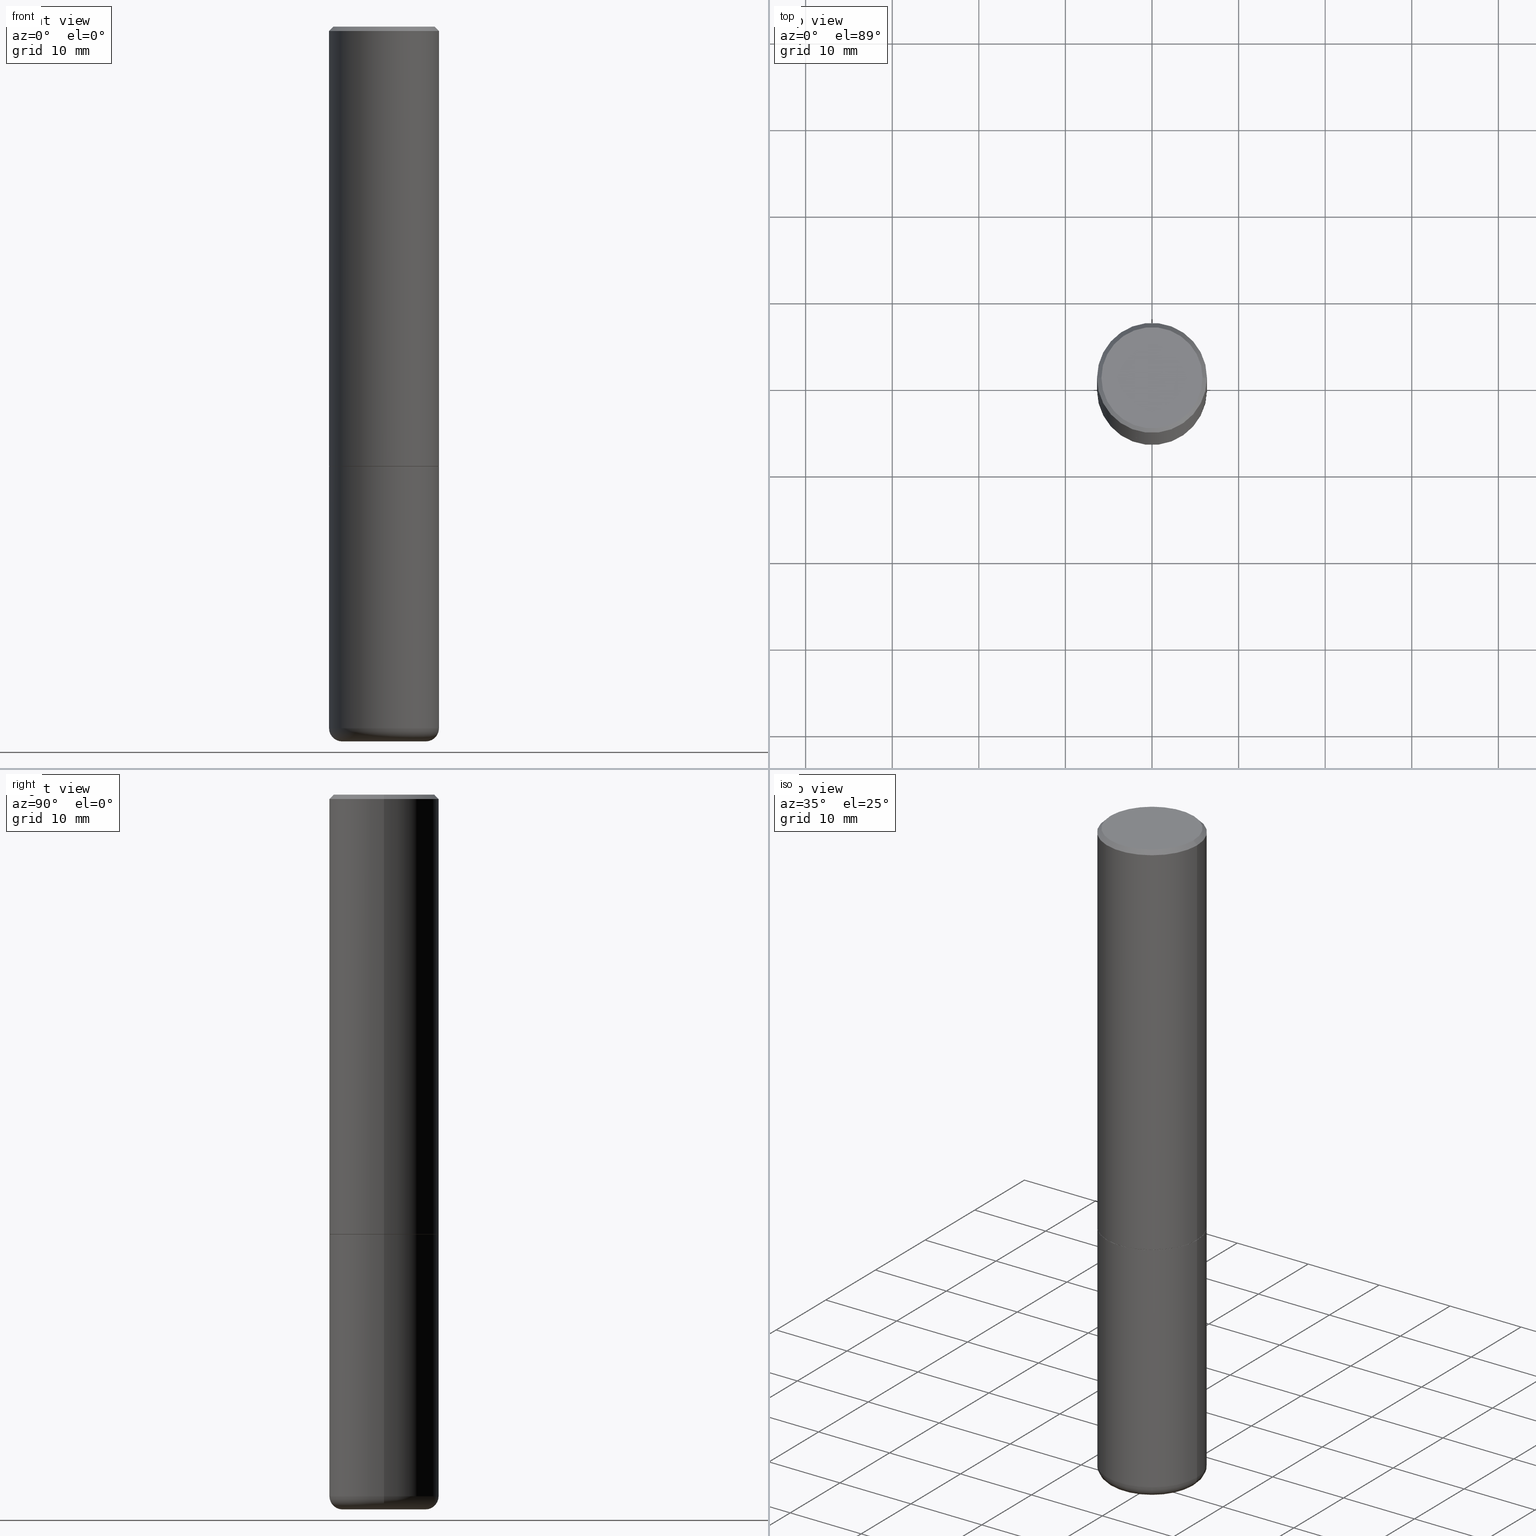
[diagram: canonical four-view strip — front | top / right | iso, engineering-drawing reading convention]
A machine part, canonical four-view strip (front | top / right | iso — engineering-drawing reading convention). The complete STEP part file that produces these views, byte-faithful:
ISO-10303-21;
HEADER;
FILE_DESCRIPTION (( 'STEP AP203' ),
    '1' );
FILE_NAME ('77180.STEP',
    '2024-03-06T16:18:30',
    ( '' ),
    ( '' ),
    'SwSTEP 2.0',
    'SolidWorks 2023',
    '' );
FILE_SCHEMA (( 'CONFIG_CONTROL_DESIGN' ));
ENDSEC;

DATA;
#1 = EDGE_CURVE ( 'NONE', #260, #391, #147, .T. ) ;
#2 = PERSON_AND_ORGANIZATION ( #313, #359 ) ;
#3 = ORIENTED_EDGE ( 'NONE', *, *, #79, .T. ) ;
#4 =( GEOMETRIC_REPRESENTATION_CONTEXT ( 3 ) GLOBAL_UNCERTAINTY_ASSIGNED_CONTEXT ( ( #137 ) ) GLOBAL_UNIT_ASSIGNED_CONTEXT ( ( #145, #129, #26 ) ) REPRESENTATION_CONTEXT ( 'NONE', 'WORKASPACE' ) );
#5 = APPROVAL_ROLE ( '' ) ;
#6 = ORIENTED_EDGE ( 'NONE', *, *, #96, .T. ) ;
#7 = PERSON_AND_ORGANIZATION_ROLE ( 'design_owner' ) ;
#8 = ORIENTED_EDGE ( 'NONE', *, *, #20, .T. ) ;
#9 = CARTESIAN_POINT ( 'NONE',  ( 0.2489999999999999991, -8.721720384430171040E-15, -2.000000000000000000 ) ) ;
#10 = EDGE_CURVE ( 'NONE', #52, #260, #418, .T. ) ;
#11 = CIRCLE ( 'NONE', #190, 0.2499999999999999167 ) ;
#12 = CARTESIAN_POINT ( 'NONE',  ( -0.2499999999999999722, -9.361468631509382488E-15, -3.189999999999999947 ) ) ;
#13 = DIRECTION ( 'NONE',  ( 1.000000000000000000, -6.982962677686266711E-15, 0.000000000000000000 ) ) ;
#14 = PRODUCT_DEFINITION ( 'UNKNOWN', '', #401, #368 ) ;
#15 = CARTESIAN_POINT ( 'NONE',  ( 0.000000000000000000, 0.000000000000000000, 0.000000000000000000 ) ) ;
#16 = AXIS2_PLACEMENT_3D ( 'NONE', #39, #168, #291 ) ;
#17 = CIRCLE ( 'NONE', #345, 0.2500000000000000000 ) ;
#18 = EDGE_CURVE ( 'NONE', #220, #314, #93, .T. ) ;
#19 = PLANE ( 'NONE',  #198 ) ;
#20 = EDGE_CURVE ( 'NONE', #377, #247, #385, .T. ) ;
#21 = CARTESIAN_POINT ( 'NONE',  ( -0.1899999999999999745, -9.679375892402709259E-15, -3.250000000000000000 ) ) ;
#22 = ORIENTED_EDGE ( 'NONE', *, *, #288, .T. ) ;
#23 = CARTESIAN_POINT ( 'NONE',  ( 4.888492143564087591E-29, -6.979471196347447369E-15, -1.998999999999999888 ) ) ;
#24 = ORIENTED_EDGE ( 'NONE', *, *, #1, .T. ) ;
#25 = LINE ( 'NONE', #303, #118 ) ;
#26 =( NAMED_UNIT ( * ) SI_UNIT ( $, .STERADIAN. ) SOLID_ANGLE_UNIT ( ) );
#27 = CONICAL_SURFACE ( 'NONE', #323, 0.2489999999999999991, 0.7853981633975507526 ) ;
#28 = ADVANCED_FACE ( 'NONE', ( #31 ), #326, .T. ) ;
#29 = ORIENTED_EDGE ( 'NONE', *, *, #334, .T. ) ;
#30 = AXIS2_PLACEMENT_3D ( 'NONE', #150, #152, #410 ) ;
#31 = FACE_OUTER_BOUND ( 'NONE', #390, .T. ) ;
#32 = CARTESIAN_POINT ( 'NONE',  ( 4.890937612370273194E-29, -6.982962677686291165E-15, -2.000000000000000000 ) ) ;
#33 = SHAPE_DEFINITION_REPRESENTATION ( #381, #366 ) ;
#34 = ORIENTED_EDGE ( 'NONE', *, *, #370, .F. ) ;
#35 = AXIS2_PLACEMENT_3D ( 'NONE', #68, #317, #358 ) ;
#36 = CIRCLE ( 'NONE', #30, 0.05999999999999994227 ) ;
#37 = AXIS2_PLACEMENT_3D ( 'NONE', #375, #216, #181 ) ;
#38 = ADVANCED_FACE ( 'NONE', ( #101 ), #27, .T. ) ;
#39 = CARTESIAN_POINT ( 'NONE',  ( 0.000000000000000000, 0.000000000000000000, 0.000000000000000000 ) ) ;
#40 = DIRECTION ( 'NONE',  ( -1.000000000000000000, 6.982962677686265922E-15, -4.876176775795935793E-29 ) ) ;
#41 = DIRECTION ( 'NONE',  ( -1.000000000000000000, 7.105427357600997914E-15, 0.000000000000000000 ) ) ;
#42 = AXIS2_PLACEMENT_3D ( 'NONE', #83, #87, #113 ) ;
#43 = LINE ( 'NONE', #106, #69 ) ;
#44 = CC_DESIGN_PERSON_AND_ORGANIZATION_ASSIGNMENT ( #257, #316, ( #401 ) ) ;
#45 = DIRECTION ( 'NONE',  ( 2.438088387897960049E-29, -3.491481338843145188E-15, -1.000000000000000000 ) ) ;
#46 = DIRECTION ( 'NONE',  ( 1.000000000000000000, -6.982962677686265133E-15, 4.883557194083112340E-29 ) ) ;
#47 = CIRCLE ( 'NONE', #156, 0.2299999999999999267 ) ;
#48 = ADVANCED_FACE ( 'NONE', ( #225 ), #126, .T. ) ;
#49 = DIRECTION ( 'NONE',  ( -2.445468806185136877E-29, 3.491481338843145188E-15, 1.000000000000000000 ) ) ;
#50 = LENGTH_MEASURE_WITH_UNIT ( LENGTH_MEASURE( 0.02539999999999999897 ), #144 );
#51 = DIRECTION ( 'NONE',  ( -2.445468806185136597E-29, 3.491481338843145583E-15, 1.000000000000000000 ) ) ;
#52 = VERTEX_POINT ( 'NONE', #162 ) ;
#53 = DIRECTION ( 'NONE',  ( -2.445468806185136877E-29, 3.491481338843145188E-15, 1.000000000000000000 ) ) ;
#54 = AXIS2_PLACEMENT_3D ( 'NONE', #15, #109, #362 ) ;
#55 = ORIENTED_EDGE ( 'NONE', *, *, #18, .T. ) ;
#56 = DIRECTION ( 'NONE',  ( -2.445468806185136597E-29, 3.491481338843145583E-15, 1.000000000000000000 ) ) ;
#57 = ORIENTED_EDGE ( 'NONE', *, *, #84, .F. ) ;
#58 = FACE_OUTER_BOUND ( 'NONE', #310, .T. ) ;
#59 = ORIENTED_EDGE ( 'NONE', *, *, #114, .T. ) ;
#60 = APPROVAL ( #120, 'UNSPECIFIED' ) ;
#61 = COORDINATED_UNIVERSAL_TIME_OFFSET ( 5, 0, .BEHIND. ) ;
#62 = DIRECTION ( 'NONE',  ( -2.445468806185136597E-29, 3.491481338843145583E-15, 1.000000000000000000 ) ) ;
#63 = AXIS2_PLACEMENT_3D ( 'NONE', #173, #275, #402 ) ;
#64 = APPROVAL_ROLE ( '' ) ;
#65 = ORIENTED_EDGE ( 'NONE', *, *, #370, .T. ) ;
#66 = ORIENTED_EDGE ( 'NONE', *, *, #136, .F. ) ;
#67 = APPROVAL_ROLE ( '' ) ;
#68 = CARTESIAN_POINT ( 'NONE',  ( 7.947773620101693940E-29, -1.134731435124022443E-14, -3.250000000000000000 ) ) ;
#69 = VECTOR ( 'NONE', #49, 39.37007874015748143 ) ;
#70 = APPROVAL_STATUS ( 'not_yet_approved' ) ;
#71 = ORIENTED_EDGE ( 'NONE', *, *, #114, .F. ) ;
#72 = CARTESIAN_POINT ( 'NONE',  ( -0.2500000000000002776, -1.748293572161900530E-15, -1.998999999999999888 ) ) ;
#73 = CARTESIAN_POINT ( 'NONE',  ( 0.2499999999999999722, -1.288356614033120121E-14, -3.189999999999999947 ) ) ;
#74 = AXIS2_PLACEMENT_3D ( 'NONE', #248, #51, #376 ) ;
#75 = DIRECTION ( 'NONE',  ( -2.438088387897960049E-29, 3.491481338843145188E-15, 1.000000000000000000 ) ) ;
#76 = CARTESIAN_POINT ( 'NONE',  ( 4.890937612370273194E-29, -6.982962677686291165E-15, -2.000000000000000000 ) ) ;
#77 = EDGE_CURVE ( 'NONE', #287, #88, #135, .T. ) ;
#78 = FACE_OUTER_BOUND ( 'NONE', #222, .T. ) ;
#79 = EDGE_CURVE ( 'NONE', #287, #52, #292, .T. ) ;
#80 = VECTOR ( 'NONE', #53, 39.37007874015748143 ) ;
#81 = FACE_OUTER_BOUND ( 'NONE', #411, .T. ) ;
#82 = ORIENTED_EDGE ( 'NONE', *, *, #361, .T. ) ;
#83 = CARTESIAN_POINT ( 'NONE',  ( 0.000000000000000000, 0.000000000000000000, 0.000000000000000000 ) ) ;
#84 = EDGE_CURVE ( 'NONE', #220, #194, #86, .T. ) ;
#85 = ORIENTED_EDGE ( 'NONE', *, *, #77, .T. ) ;
#86 = CIRCLE ( 'NONE', #148, 0.2500000000000000000 ) ;
#87 = DIRECTION ( 'NONE',  ( -2.445468806185136597E-29, 3.491481338843145583E-15, 1.000000000000000000 ) ) ;
#88 = VERTEX_POINT ( 'NONE', #335 ) ;
#89 = DIRECTION ( 'NONE',  ( 1.000000000000000000, -6.982962677686261977E-15, 0.000000000000000000 ) ) ;
#90 = CALENDAR_DATE ( 2024, 6, 3 ) ;
#91 = EDGE_LOOP ( 'NONE', ( #59, #154, #166, #372 ) ) ;
#92 = APPROVAL_DATE_TIME ( #197, #163 ) ;
#93 = LINE ( 'NONE', #229, #293 ) ;
#94 = CIRCLE ( 'NONE', #330, 0.1899999999999999745 ) ;
#95 = APPLICATION_PROTOCOL_DEFINITION ( 'international standard', 'config_control_design', 1994, #242 ) ;
#96 = EDGE_CURVE ( 'NONE', #88, #287, #172, .T. ) ;
#97 = ORIENTED_EDGE ( 'NONE', *, *, #169, .T. ) ;
#98 = COORDINATED_UNIVERSAL_TIME_OFFSET ( 5, 0, .BEHIND. ) ;
#99 = DIRECTION ( 'NONE',  ( -2.445468806185136877E-29, 3.491481338843145188E-15, 1.000000000000000000 ) ) ;
#100 = APPROVAL_DATE_TIME ( #387, #60 ) ;
#101 = FACE_OUTER_BOUND ( 'NONE', #201, .T. ) ;
#102 = CIRCLE ( 'NONE', #37, 0.2500000000000000000 ) ;
#103 = DIRECTION ( 'NONE',  ( 2.445468806185136597E-29, -3.491481338843145583E-15, -1.000000000000000000 ) ) ;
#104 = EDGE_CURVE ( 'NONE', #391, #260, #11, .T. ) ;
#105 = PLANE ( 'NONE',  #127 ) ;
#106 = CARTESIAN_POINT ( 'NONE',  ( 0.2500000000000000000, -1.745740669421566678E-15, 1.219044193948983948E-29 ) ) ;
#107 = AXIS2_PLACEMENT_3D ( 'NONE', #265, #228, #382 ) ;
#108 = FACE_OUTER_BOUND ( 'NONE', #91, .T. ) ;
#109 = DIRECTION ( 'NONE',  ( -2.445468806185136597E-29, 3.491481338843145583E-15, 1.000000000000000000 ) ) ;
#110 = PRODUCT_RELATED_PRODUCT_CATEGORY ( 'detail', '', ( #133 ) ) ;
#111 = LINE ( 'NONE', #343, #80 ) ;
#112 = LOCAL_TIME ( 11, 18, 30.00000000000000000, #357 ) ;
#113 = DIRECTION ( 'NONE',  ( 1.000000000000000000, -6.982962677686266711E-15, 4.876176775795935793E-29 ) ) ;
#114 = EDGE_CURVE ( 'NONE', #52, #182, #209, .T. ) ;
#115 = DIRECTION ( 'NONE',  ( -2.445468806185136597E-29, 3.491481338843145583E-15, 1.000000000000000000 ) ) ;
#116 = ORIENTED_EDGE ( 'NONE', *, *, #276, .F. ) ;
#117 = DIRECTION ( 'NONE',  ( 0.7071067811865465735, -7.319954787623252890E-15, -0.7071067811865484609 ) ) ;
#118 = VECTOR ( 'NONE', #379, 39.37007874015748143 ) ;
#119 = DIRECTION ( 'NONE',  ( 1.000000000000000000, -6.982962677686270655E-15, 0.000000000000000000 ) ) ;
#120 = APPROVAL_STATUS ( 'not_yet_approved' ) ;
#121 = ORIENTED_EDGE ( 'NONE', *, *, #104, .T. ) ;
#122 = ADVANCED_FACE ( 'NONE', ( #394 ), #253, .T. ) ;
#123 = PERSON_AND_ORGANIZATION ( #313, #359 ) ;
#124 = CARTESIAN_POINT ( 'NONE',  ( 0.2500000000000001110, -1.745740669421567467E-15, 1.219044193948984509E-29 ) ) ;
#125 = DATE_TIME_ROLE ( 'classification_date' ) ;
#126 = PLANE ( 'NONE',  #155 ) ;
#127 = AXIS2_PLACEMENT_3D ( 'NONE', #134, #236, #204 ) ;
#128 = CC_DESIGN_SECURITY_CLASSIFICATION ( #149, ( #401 ) ) ;
#129 =( NAMED_UNIT ( * ) PLANE_ANGLE_UNIT ( ) SI_UNIT ( $, .RADIAN. ) );
#130 = EDGE_LOOP ( 'NONE', ( #132, #278, #24, #116 ) ) ;
#131 = CALENDAR_DATE ( 2024, 6, 3 ) ;
#132 = ORIENTED_EDGE ( 'NONE', *, *, #334, .F. ) ;
#133 = PRODUCT ( '77180', '77180', '', ( #284 ) ) ;
#134 = CARTESIAN_POINT ( 'NONE',  ( 1.606081415867840870E-15, 0.2299999999999999267, -8.073092204240237214E-16 ) ) ;
#135 = CIRCLE ( 'NONE', #141, 0.2489999999999999991 ) ;
#136 = EDGE_CURVE ( 'NONE', #314, #199, #17, .T. ) ;
#137 = UNCERTAINTY_MEASURE_WITH_UNIT (LENGTH_MEASURE( 1.000000000000000082E-05 ), #145, 'distance_accuracy_value', 'NONE');
#138 = FACE_OUTER_BOUND ( 'NONE', #339, .T. ) ;
#139 = CARTESIAN_POINT ( 'NONE',  ( 0.2500000000000000000, -8.728703347107857054E-15, -2.000000000000000000 ) ) ;
#140 = DIRECTION ( 'NONE',  ( -2.445468806185136597E-29, 3.491481338843145583E-15, 1.000000000000000000 ) ) ;
#141 = AXIS2_PLACEMENT_3D ( 'NONE', #32, #264, #170 ) ;
#142 = ADVANCED_FACE ( 'NONE', ( #108 ), #333, .T. ) ;
#143 = CARTESIAN_POINT ( 'NONE',  ( 4.888492143564087591E-29, -6.979471196347447369E-15, -1.998999999999999888 ) ) ;
#144 =( LENGTH_UNIT ( ) NAMED_UNIT ( * ) SI_UNIT ( $, .METRE. ) );
#145 =( CONVERSION_BASED_UNIT ( 'INCH', #50 ) LENGTH_UNIT ( ) NAMED_UNIT ( #200 ) );
#146 = ORIENTED_EDGE ( 'NONE', *, *, #320, .T. ) ;
#147 = CIRCLE ( 'NONE', #397, 0.2499999999999999167 ) ;
#148 = AXIS2_PLACEMENT_3D ( 'NONE', #295, #207, #175 ) ;
#149 = SECURITY_CLASSIFICATION ( '', '', #417 ) ;
#150 = CARTESIAN_POINT ( 'NONE',  ( 0.1899999999999999745, -1.246458837967002615E-14, -3.189999999999999947 ) ) ;
#151 = EDGE_LOOP ( 'NONE', ( #256, #6, #3, #34 ) ) ;
#152 = DIRECTION ( 'NONE',  ( -6.982962677686266711E-15, -1.000000000000000000, 3.491481338843145583E-15 ) ) ;
#153 = FACE_OUTER_BOUND ( 'NONE', #233, .T. ) ;
#154 = ORIENTED_EDGE ( 'NONE', *, *, #341, .T. ) ;
#155 = AXIS2_PLACEMENT_3D ( 'NONE', #327, #319, #40 ) ;
#156 = AXIS2_PLACEMENT_3D ( 'NONE', #280, #246, #403 ) ;
#157 = APPLICATION_PROTOCOL_DEFINITION ( 'international standard', 'config_control_design', 1994, #215 ) ;
#158 = ORIENTED_EDGE ( 'NONE', *, *, #218, .F. ) ;
#159 = PERSON_AND_ORGANIZATION ( #313, #359 ) ;
#160 = DIRECTION ( 'NONE',  ( -2.445468806185136597E-29, 3.491481338843145583E-15, 1.000000000000000000 ) ) ;
#161 = DATE_AND_TIME ( #90, #269 ) ;
#162 = CARTESIAN_POINT ( 'NONE',  ( 0.2500000000000002776, -8.725211865769015625E-15, -1.998999999999999888 ) ) ;
#163 = APPROVAL ( #259, 'UNSPECIFIED' ) ;
#164 = CALENDAR_DATE ( 2024, 6, 3 ) ;
#165 = CLOSED_SHELL ( 'NONE', ( #28, #174, #234, #298, #271, #48 ) ) ;
#166 = ORIENTED_EDGE ( 'NONE', *, *, #1, .F. ) ;
#167 = VECTOR ( 'NONE', #383, 39.37007874015748143 ) ;
#168 = DIRECTION ( 'NONE',  ( -2.445468806185136597E-29, 3.491481338843145583E-15, 1.000000000000000000 ) ) ;
#169 = EDGE_CURVE ( 'NONE', #88, #182, #363, .T. ) ;
#170 = DIRECTION ( 'NONE',  ( 1.000000000000000000, -6.982962677686266711E-15, 0.000000000000000000 ) ) ;
#171 = DIRECTION ( 'NONE',  ( 1.000000000000000000, -6.982962677686266711E-15, 0.000000000000000000 ) ) ;
#172 = CIRCLE ( 'NONE', #405, 0.2489999999999999991 ) ;
#173 = CARTESIAN_POINT ( 'NONE',  ( 4.890937612370287172E-31, -6.982962677686310098E-17, -0.02000000000000005593 ) ) ;
#174 = ADVANCED_FACE ( 'NONE', ( #138 ), #245, .T. ) ;
#175 = DIRECTION ( 'NONE',  ( 1.000000000000000000, -6.982962677686270655E-15, 0.000000000000000000 ) ) ;
#176 = FACE_OUTER_BOUND ( 'NONE', #130, .T. ) ;
#177 = AXIS2_PLACEMENT_3D ( 'NONE', #329, #299, #41 ) ;
#178 = ADVANCED_FACE ( 'NONE', ( #176 ), #364, .T. ) ;
#179 = CARTESIAN_POINT ( 'NONE',  ( 4.890937612370273194E-29, -6.982962677686291165E-15, -2.000000000000000000 ) ) ;
#180 = DIRECTION ( 'NONE',  ( 1.000000000000000000, -6.982962677686266711E-15, 4.876176775795935793E-29 ) ) ;
#181 = DIRECTION ( 'NONE',  ( 1.000000000000000000, -6.982962677686266711E-15, 0.000000000000000000 ) ) ;
#182 = VERTEX_POINT ( 'NONE', #72 ) ;
#183 = CIRCLE ( 'NONE', #315, 0.2500000000000002776 ) ;
#184 = DIRECTION ( 'NONE',  ( 1.000000000000000000, -6.982962677686266711E-15, 0.000000000000000000 ) ) ;
#185 = ORIENTED_EDGE ( 'NONE', *, *, #361, .F. ) ;
#186 = DIRECTION ( 'NONE',  ( 1.000000000000000000, -6.982962677686266711E-15, 0.000000000000000000 ) ) ;
#187 = EDGE_LOOP ( 'NONE', ( #22, #304 ) ) ;
#188 = CARTESIAN_POINT ( 'NONE',  ( -0.2299999999999999267, 1.640996229256272125E-15, -8.537024980212177841E-18 ) ) ;
#189 = EDGE_LOOP ( 'NONE', ( #82, #29 ) ) ;
#190 = AXIS2_PLACEMENT_3D ( 'NONE', #272, #297, #367 ) ;
#191 = PERSON_AND_ORGANIZATION_ROLE ( 'creator' ) ;
#192 = CARTESIAN_POINT ( 'NONE',  ( 4.890937612370287172E-31, -6.982962677686310098E-17, -0.02000000000000005593 ) ) ;
#193 = COORDINATED_UNIVERSAL_TIME_OFFSET ( 5, 0, .BEHIND. ) ;
#194 = VERTEX_POINT ( 'NONE', #73 ) ;
#195 = DATE_AND_TIME ( #221, #112 ) ;
#196 = ORIENTED_EDGE ( 'NONE', *, *, #96, .F. ) ;
#197 = DATE_AND_TIME ( #131, #254 ) ;
#198 = AXIS2_PLACEMENT_3D ( 'NONE', #270, #45, #395 ) ;
#199 = VERTEX_POINT ( 'NONE', #139 ) ;
#200 = DIMENSIONAL_EXPONENTS ( 1.000000000000000000, 0.000000000000000000, 0.000000000000000000, 0.000000000000000000, 0.000000000000000000, 0.000000000000000000, 0.000000000000000000 ) ;
#201 = EDGE_LOOP ( 'NONE', ( #85, #97, #71, #352 ) ) ;
#202 = EDGE_CURVE ( 'NONE', #247, #220, #336, .T. ) ;
#203 = DIRECTION ( 'NONE',  ( -1.000000000000000000, 6.982962677686267499E-15, 0.000000000000000000 ) ) ;
#204 = DIRECTION ( 'NONE',  ( -1.000000000000000000, 6.982962677686265922E-15, -4.876176775795935793E-29 ) ) ;
#205 = DIRECTION ( 'NONE',  ( 1.000000000000000000, -6.982962677686265922E-15, 4.876176775795935793E-29 ) ) ;
#206 = CARTESIAN_POINT ( 'NONE',  ( 4.890937612370273194E-29, -6.982962677686291165E-15, -2.000000000000000000 ) ) ;
#207 = DIRECTION ( 'NONE',  ( -2.445468806185136597E-29, 3.491481338843145583E-15, 1.000000000000000000 ) ) ;
#208 = CLOSED_SHELL ( 'NONE', ( #38, #142, #178, #122, #347, #350, #230, #237 ) ) ;
#209 = CIRCLE ( 'NONE', #274, 0.2500000000000002776 ) ;
#210 = LOCAL_TIME ( 11, 18, 30.00000000000000000, #98 ) ;
#211 = CC_DESIGN_DATE_AND_TIME_ASSIGNMENT ( #262, #351, ( #14 ) ) ;
#212 = CARTESIAN_POINT ( 'NONE',  ( 7.947773620101693940E-29, -1.134731435124022443E-14, -3.250000000000000000 ) ) ;
#213 = FACE_OUTER_BOUND ( 'NONE', #151, .T. ) ;
#214 = EDGE_LOOP ( 'NONE', ( #312, #258 ) ) ;
#215 = APPLICATION_CONTEXT ( 'configuration controlled 3d designs of mechanical parts and assemblies' ) ;
#216 = DIRECTION ( 'NONE',  ( -2.445468806185136597E-29, 3.491481338843145583E-15, 1.000000000000000000 ) ) ;
#217 = ORIENTED_EDGE ( 'NONE', *, *, #243, .F. ) ;
#218 = EDGE_CURVE ( 'NONE', #194, #199, #43, .T. ) ;
#219 = DIRECTION ( 'NONE',  ( -2.445468806185136597E-29, 3.491481338843145583E-15, 1.000000000000000000 ) ) ;
#220 = VERTEX_POINT ( 'NONE', #12 ) ;
#221 = CALENDAR_DATE ( 2024, 6, 3 ) ;
#222 = EDGE_LOOP ( 'NONE', ( #321, #196 ) ) ;
#223 = VECTOR ( 'NONE', #117, 39.37007874015748143 ) ;
#224 = PERSON_AND_ORGANIZATION_ROLE ( 'creator' ) ;
#225 = FACE_OUTER_BOUND ( 'NONE', #214, .T. ) ;
#226 = COORDINATED_UNIVERSAL_TIME_OFFSET ( 5, 0, .BEHIND. ) ;
#227 = ORIENTED_EDGE ( 'NONE', *, *, #18, .F. ) ;
#228 = DIRECTION ( 'NONE',  ( 0.000000000000000000, 0.000000000000000000, 1.000000000000000000 ) ) ;
#229 = CARTESIAN_POINT ( 'NONE',  ( -0.2500000000000000000, 1.776356839400250465E-15, -1.229733772563726445E-29 ) ) ;
#230 = ADVANCED_FACE ( 'NONE', ( #78 ), #365, .F. ) ;
#231 = PERSON_AND_ORGANIZATION ( #313, #359 ) ;
#232 = TOROIDAL_SURFACE ( 'NONE', #74, 0.1899999999999999745, 0.05999999999999995615 ) ;
#233 = EDGE_LOOP ( 'NONE', ( #380, #65, #344, #409 ) ) ;
#234 = ADVANCED_FACE ( 'NONE', ( #332 ), #19, .F. ) ;
#235 = DIRECTION ( 'NONE',  ( -2.445468806185136597E-29, 3.491481338843145583E-15, 1.000000000000000000 ) ) ;
#236 = DIRECTION ( 'NONE',  ( 2.438088387897960049E-29, -3.491481338843145188E-15, -1.000000000000000000 ) ) ;
#237 = ADVANCED_FACE ( 'NONE', ( #301 ), #105, .F. ) ;
#238 = DIRECTION ( 'NONE',  ( 1.000000000000000000, -6.982962677686266711E-15, 0.000000000000000000 ) ) ;
#239 = AXIS2_PLACEMENT_3D ( 'NONE', #338, #219, #184 ) ;
#240 = DIRECTION ( 'NONE',  ( -0.7071067811866199593, 7.493145998870616062E-15, 0.7071067811864750752 ) ) ;
#241 = CARTESIAN_POINT ( 'NONE',  ( -0.2489999999999999991, -5.213711265643641709E-15, -2.000000000000000000 ) ) ;
#242 = APPLICATION_CONTEXT ( 'configuration controlled 3d designs of mechanical parts and assemblies' ) ;
#243 = EDGE_CURVE ( 'NONE', #374, #260, #331, .T. ) ;
#244 = DIRECTION ( 'NONE',  ( -2.445468806185136597E-29, 3.491481338843145583E-15, 1.000000000000000000 ) ) ;
#245 = TOROIDAL_SURFACE ( 'NONE', #294, 0.1899999999999999745, 0.05999999999999995615 ) ;
#246 = DIRECTION ( 'NONE',  ( -2.445468806185136597E-29, 3.491481338843145583E-15, 1.000000000000000000 ) ) ;
#247 = VERTEX_POINT ( 'NONE', #21 ) ;
#248 = CARTESIAN_POINT ( 'NONE',  ( 7.801045491730585789E-29, -1.113782547090963453E-14, -3.189999999999999947 ) ) ;
#249 = EDGE_LOOP ( 'NONE', ( #217, #185, #388, #121 ) ) ;
#250 = CARTESIAN_POINT ( 'NONE',  ( 0.2489999999999999991, -8.721720384430171040E-15, -2.000000000000000000 ) ) ;
#251 = APPROVAL ( #70, 'UNSPECIFIED' ) ;
#252 = ORIENTED_EDGE ( 'NONE', *, *, #320, .F. ) ;
#253 = CONICAL_SURFACE ( 'NONE', #63, 0.2499999999999999167, 0.7853981633974469467 ) ;
#254 = LOCAL_TIME ( 11, 18, 30.00000000000000000, #193 ) ;
#255 = DIRECTION ( 'NONE',  ( -2.445468806185136597E-29, 3.491481338843145583E-15, 1.000000000000000000 ) ) ;
#256 = ORIENTED_EDGE ( 'NONE', *, *, #169, .F. ) ;
#257 = PERSON_AND_ORGANIZATION ( #313, #359 ) ;
#258 = ORIENTED_EDGE ( 'NONE', *, *, #399, .F. ) ;
#259 = APPROVAL_STATUS ( 'not_yet_approved' ) ;
#260 = VERTEX_POINT ( 'NONE', #348 ) ;
#261 = AXIS2_PLACEMENT_3D ( 'NONE', #369, #103, #203 ) ;
#262 = DATE_AND_TIME ( #164, #210 ) ;
#263 = CC_DESIGN_APPROVAL ( #251, ( #14 ) ) ;
#264 = DIRECTION ( 'NONE',  ( -2.445468806185136597E-29, 3.491481338843145583E-15, 1.000000000000000000 ) ) ;
#265 = CARTESIAN_POINT ( 'NONE',  ( 0.000000000000000000, 0.000000000000000000, 0.000000000000000000 ) ) ;
#266 = DIRECTION ( 'NONE',  ( -2.445468806185136877E-29, 3.491481338843145188E-15, 1.000000000000000000 ) ) ;
#267 = DIRECTION ( 'NONE',  ( 1.000000000000000000, -6.982962677686267499E-15, 0.000000000000000000 ) ) ;
#268 = CONICAL_SURFACE ( 'NONE', #239, 0.2489999999999999991, 0.7853981633975507526 ) ;
#269 = LOCAL_TIME ( 11, 18, 30.00000000000000000, #61 ) ;
#270 = CARTESIAN_POINT ( 'NONE',  ( 3.364826205900701146E-29, -9.168441072617700951E-15, -2.000000000000000000 ) ) ;
#271 = ADVANCED_FACE ( 'NONE', ( #58 ), #232, .T. ) ;
#272 = CARTESIAN_POINT ( 'NONE',  ( 4.890937612370287172E-31, -6.982962677686310098E-17, -0.02000000000000005593 ) ) ;
#273 = DIRECTION ( 'NONE',  ( -2.445468806185136597E-29, 3.491481338843145583E-15, 1.000000000000000000 ) ) ;
#274 = AXIS2_PLACEMENT_3D ( 'NONE', #143, #140, #13 ) ;
#275 = DIRECTION ( 'NONE',  ( 2.445468806185136597E-29, -3.491481338843145583E-15, -1.000000000000000000 ) ) ;
#276 = EDGE_CURVE ( 'NONE', #413, #391, #25, .T. ) ;
#277 = CYLINDRICAL_SURFACE ( 'NONE', #42, 0.2500000000000000000 ) ;
#278 = ORIENTED_EDGE ( 'NONE', *, *, #243, .T. ) ;
#279 = AXIS2_PLACEMENT_3D ( 'NONE', #302, #412, #119 ) ;
#280 = CARTESIAN_POINT ( 'NONE',  ( 2.087702828670439639E-46, -2.980686340760894400E-32, -8.537024980200822558E-18 ) ) ;
#281 = CARTESIAN_POINT ( 'NONE',  ( 0.2299999999999999267, -1.681434332853598617E-15, -8.537024980189327067E-18 ) ) ;
#282 = CARTESIAN_POINT ( 'NONE',  ( 0.1899999999999999745, -1.267407726000061289E-14, -3.250000000000000000 ) ) ;
#283 = AXIS2_PLACEMENT_3D ( 'NONE', #179, #75, #205 ) ;
#284 = MECHANICAL_CONTEXT ( 'NONE', #242, 'mechanical' ) ;
#285 = ORIENTED_EDGE ( 'NONE', *, *, #202, .T. ) ;
#286 = CALENDAR_DATE ( 2024, 6, 3 ) ;
#287 = VERTEX_POINT ( 'NONE', #250 ) ;
#288 = EDGE_CURVE ( 'NONE', #199, #314, #102, .T. ) ;
#289 = ORIENTED_EDGE ( 'NONE', *, *, #84, .T. ) ;
#290 = PERSON_AND_ORGANIZATION ( #313, #359 ) ;
#291 = DIRECTION ( 'NONE',  ( 1.000000000000000000, -6.982962677686266711E-15, 4.876176775795935793E-29 ) ) ;
#292 = LINE ( 'NONE', #9, #167 ) ;
#293 = VECTOR ( 'NONE', #99, 39.37007874015748143 ) ;
#294 = AXIS2_PLACEMENT_3D ( 'NONE', #396, #273, #46 ) ;
#295 = CARTESIAN_POINT ( 'NONE',  ( 7.801045491730585789E-29, -1.113782547090963453E-14, -3.189999999999999947 ) ) ;
#296 = CARTESIAN_POINT ( 'NONE',  ( 0.2499999999999999167, -1.784954126219745400E-15, -0.02000000000000005593 ) ) ;
#297 = DIRECTION ( 'NONE',  ( -2.445468806185136597E-29, 3.491481338843145583E-15, 1.000000000000000000 ) ) ;
#298 = ADVANCED_FACE ( 'NONE', ( #81 ), #277, .T. ) ;
#299 = DIRECTION ( 'NONE',  ( 7.105427357601001859E-15, 1.000000000000000000, -3.491481338843145583E-15 ) ) ;
#300 = AXIS2_PLACEMENT_3D ( 'NONE', #373, #244, #180 ) ;
#301 = FACE_OUTER_BOUND ( 'NONE', #189, .T. ) ;
#302 = CARTESIAN_POINT ( 'NONE',  ( 7.801045491730585789E-29, -1.113782547090963453E-14, -3.189999999999999947 ) ) ;
#303 = CARTESIAN_POINT ( 'NONE',  ( -0.2499999999999999167, 1.675911042644703182E-15, -0.02000000000000005593 ) ) ;
#304 = ORIENTED_EDGE ( 'NONE', *, *, #136, .T. ) ;
#305 = AXIS2_PLACEMENT_3D ( 'NONE', #308, #115, #346 ) ;
#306 = CC_DESIGN_PERSON_AND_ORGANIZATION_ASSIGNMENT ( #415, #224, ( #14 ) ) ;
#307 = APPROVAL_PERSON_ORGANIZATION ( #231, #163, #67 ) ;
#308 = CARTESIAN_POINT ( 'NONE',  ( 2.087702828670439639E-46, -2.980686340760894400E-32, -8.537024980200822558E-18 ) ) ;
#309 = MANIFOLD_SOLID_BREP ( 'Body-Move/Copy2[1]', #165 ) ;
#310 = EDGE_LOOP ( 'NONE', ( #360, #416, #146, #57 ) ) ;
#311 = CARTESIAN_POINT ( 'NONE',  ( -0.2500000000000000000, -7.284037234897712778E-15, -2.000000000000000000 ) ) ;
#312 = ORIENTED_EDGE ( 'NONE', *, *, #20, .F. ) ;
#313 = PERSON ( 'UNSPECIFIED', 'UNSPECIFIED', 'UNSPECIFIED', ('UNSPECIFIED'), ('UNSPECIFIED'), ('UNSPECIFIED') ) ;
#314 = VERTEX_POINT ( 'NONE', #311 ) ;
#315 = AXIS2_PLACEMENT_3D ( 'NONE', #23, #56, #186 ) ;
#316 = PERSON_AND_ORGANIZATION_ROLE ( 'design_supplier' ) ;
#317 = DIRECTION ( 'NONE',  ( -2.445468806185136597E-29, 3.491481338843145583E-15, 1.000000000000000000 ) ) ;
#318 = APPROVAL_DATE_TIME ( #161, #251 ) ;
#319 = DIRECTION ( 'NONE',  ( 2.438088387897960049E-29, -3.491481338843145188E-15, -1.000000000000000000 ) ) ;
#320 = EDGE_CURVE ( 'NONE', #377, #194, #36, .T. ) ;
#321 = ORIENTED_EDGE ( 'NONE', *, *, #77, .F. ) ;
#322 = CC_DESIGN_PERSON_AND_ORGANIZATION_ASSIGNMENT ( #389, #7, ( #133 ) ) ;
#323 = AXIS2_PLACEMENT_3D ( 'NONE', #354, #160, #384 ) ;
#324 = APPROVAL_PERSON_ORGANIZATION ( #159, #60, #5 ) ;
#325 = MANIFOLD_SOLID_BREP ( 'Body-Move/Copy2[2]', #208 ) ;
#326 = CYLINDRICAL_SURFACE ( 'NONE', #16, 0.2500000000000000000 ) ;
#327 = CARTESIAN_POINT ( 'NONE',  ( 7.947773620101693940E-29, -1.134731435124022443E-14, -3.250000000000000000 ) ) ;
#328 = CC_DESIGN_PERSON_AND_ORGANIZATION_ASSIGNMENT ( #290, #355, ( #149 ) ) ;
#329 = CARTESIAN_POINT ( 'NONE',  ( -0.1899999999999999745, -9.787794272965444556E-15, -3.189999999999999947 ) ) ;
#330 = AXIS2_PLACEMENT_3D ( 'NONE', #212, #255, #89 ) ;
#331 = LINE ( 'NONE', #296, #223 ) ;
#332 = FACE_OUTER_BOUND ( 'NONE', #187, .T. ) ;
#333 = CYLINDRICAL_SURFACE ( 'NONE', #54, 0.2500000000000001110 ) ;
#334 = EDGE_CURVE ( 'NONE', #374, #413, #47, .T. ) ;
#335 = CARTESIAN_POINT ( 'NONE',  ( -0.2489999999999999991, -5.208412811295418518E-15, -2.000000000000000000 ) ) ;
#336 = CIRCLE ( 'NONE', #177, 0.05999999999999994227 ) ;
#337 = LOCAL_TIME ( 11, 18, 30.00000000000000000, #226 ) ;
#338 = CARTESIAN_POINT ( 'NONE',  ( 4.890937612370273194E-29, -6.982962677686291165E-15, -2.000000000000000000 ) ) ;
#339 = EDGE_LOOP ( 'NONE', ( #8, #285, #407, #252 ) ) ;
#340 = CARTESIAN_POINT ( 'NONE',  ( -0.2499999999999999167, 1.675911042644703182E-15, -0.02000000000000005593 ) ) ;
#341 = EDGE_CURVE ( 'NONE', #182, #391, #111, .T. ) ;
#342 = ORIENTED_EDGE ( 'NONE', *, *, #288, .F. ) ;
#343 = CARTESIAN_POINT ( 'NONE',  ( -0.2500000000000001110, 1.776356839400251254E-15, -1.229733772563727006E-29 ) ) ;
#344 = ORIENTED_EDGE ( 'NONE', *, *, #10, .T. ) ;
#345 = AXIS2_PLACEMENT_3D ( 'NONE', #206, #400, #171 ) ;
#346 = DIRECTION ( 'NONE',  ( 1.000000000000000000, -6.982962677686267499E-15, 4.876225828469310563E-29 ) ) ;
#347 = ADVANCED_FACE ( 'NONE', ( #153 ), #408, .T. ) ;
#348 = CARTESIAN_POINT ( 'NONE',  ( 0.2499999999999999167, -1.784954126219745400E-15, -0.02000000000000005593 ) ) ;
#349 = ORIENTED_EDGE ( 'NONE', *, *, #218, .T. ) ;
#350 = ADVANCED_FACE ( 'NONE', ( #213 ), #268, .T. ) ;
#351 = DATE_TIME_ROLE ( 'creation_date' ) ;
#352 = ORIENTED_EDGE ( 'NONE', *, *, #79, .F. ) ;
#353 = APPROVAL_PERSON_ORGANIZATION ( #123, #251, #64 ) ;
#354 = CARTESIAN_POINT ( 'NONE',  ( 4.890937612370273194E-29, -6.982962677686291165E-15, -2.000000000000000000 ) ) ;
#355 = PERSON_AND_ORGANIZATION_ROLE ( 'classification_officer' ) ;
#356 = ORIENTED_EDGE ( 'NONE', *, *, #378, .T. ) ;
#357 = COORDINATED_UNIVERSAL_TIME_OFFSET ( 5, 0, .BEHIND. ) ;
#358 = DIRECTION ( 'NONE',  ( 1.000000000000000000, -6.982962677686261977E-15, 0.000000000000000000 ) ) ;
#359 = ORGANIZATION ( 'UNSPECIFIED', 'UNSPECIFIED', '' ) ;
#360 = ORIENTED_EDGE ( 'NONE', *, *, #202, .F. ) ;
#361 = EDGE_CURVE ( 'NONE', #413, #374, #392, .T. ) ;
#362 = DIRECTION ( 'NONE',  ( 1.000000000000000000, -6.982962677686266711E-15, 4.876176775795935793E-29 ) ) ;
#363 = LINE ( 'NONE', #241, #414 ) ;
#364 = CONICAL_SURFACE ( 'NONE', #261, 0.2499999999999999167, 0.7853981633974469467 ) ;
#365 = PLANE ( 'NONE',  #283 ) ;
#366 = ADVANCED_BREP_SHAPE_REPRESENTATION ( '77180', ( #309, #325, #107 ), #4 ) ;
#367 = DIRECTION ( 'NONE',  ( 1.000000000000000000, -6.982962677686267499E-15, 0.000000000000000000 ) ) ;
#368 = DESIGN_CONTEXT ( 'detailed design', #215, 'design' ) ;
#369 = CARTESIAN_POINT ( 'NONE',  ( 4.890937612370287172E-31, -6.982962677686310098E-17, -0.02000000000000005593 ) ) ;
#370 = EDGE_CURVE ( 'NONE', #182, #52, #183, .T. ) ;
#371 = CIRCLE ( 'NONE', #279, 0.2500000000000000000 ) ;
#372 = ORIENTED_EDGE ( 'NONE', *, *, #10, .F. ) ;
#373 = CARTESIAN_POINT ( 'NONE',  ( 0.000000000000000000, 0.000000000000000000, 0.000000000000000000 ) ) ;
#374 = VERTEX_POINT ( 'NONE', #281 ) ;
#375 = CARTESIAN_POINT ( 'NONE',  ( 4.890937612370273194E-29, -6.982962677686291165E-15, -2.000000000000000000 ) ) ;
#376 = DIRECTION ( 'NONE',  ( 1.000000000000000000, -6.982962677686265133E-15, 4.883557194083112340E-29 ) ) ;
#377 = VERTEX_POINT ( 'NONE', #282 ) ;
#378 = EDGE_CURVE ( 'NONE', #194, #220, #371, .T. ) ;
#379 = DIRECTION ( 'NONE',  ( -0.7071067811865465735, 2.468850131082246805E-15, -0.7071067811865484609 ) ) ;
#380 = ORIENTED_EDGE ( 'NONE', *, *, #341, .F. ) ;
#381 = PRODUCT_DEFINITION_SHAPE ( 'NONE', 'NONE',  #14 ) ;
#382 = DIRECTION ( 'NONE',  ( 1.000000000000000000, 0.000000000000000000, 0.000000000000000000 ) ) ;
#383 = DIRECTION ( 'NONE',  ( 0.7071067811866199593, -2.468850131083015945E-15, 0.7071067811864750752 ) ) ;
#384 = DIRECTION ( 'NONE',  ( 1.000000000000000000, -6.982962677686266711E-15, 0.000000000000000000 ) ) ;
#385 = CIRCLE ( 'NONE', #35, 0.1899999999999999745 ) ;
#386 = CC_DESIGN_DATE_AND_TIME_ASSIGNMENT ( #195, #125, ( #149 ) ) ;
#387 = DATE_AND_TIME ( #286, #337 ) ;
#388 = ORIENTED_EDGE ( 'NONE', *, *, #276, .T. ) ;
#389 = PERSON_AND_ORGANIZATION ( #313, #359 ) ;
#390 = EDGE_LOOP ( 'NONE', ( #356, #55, #342, #158 ) ) ;
#391 = VERTEX_POINT ( 'NONE', #340 ) ;
#392 = CIRCLE ( 'NONE', #305, 0.2299999999999999267 ) ;
#393 = CC_DESIGN_APPROVAL ( #60, ( #401 ) ) ;
#394 = FACE_OUTER_BOUND ( 'NONE', #249, .T. ) ;
#395 = DIRECTION ( 'NONE',  ( -1.000000000000000000, 6.982962677686265922E-15, -4.876176775795935793E-29 ) ) ;
#396 = CARTESIAN_POINT ( 'NONE',  ( 7.801045491730585789E-29, -1.113782547090963453E-14, -3.189999999999999947 ) ) ;
#397 = AXIS2_PLACEMENT_3D ( 'NONE', #192, #62, #267 ) ;
#398 = VECTOR ( 'NONE', #266, 39.37007874015748143 ) ;
#399 = EDGE_CURVE ( 'NONE', #247, #377, #94, .T. ) ;
#400 = DIRECTION ( 'NONE',  ( -2.445468806185136597E-29, 3.491481338843145583E-15, 1.000000000000000000 ) ) ;
#401 = PRODUCT_DEFINITION_FORMATION_WITH_SPECIFIED_SOURCE ( 'ANY', '', #133, .NOT_KNOWN. ) ;
#402 = DIRECTION ( 'NONE',  ( -1.000000000000000000, 6.982962677686267499E-15, 0.000000000000000000 ) ) ;
#403 = DIRECTION ( 'NONE',  ( 1.000000000000000000, -6.982962677686267499E-15, 4.876225828469310563E-29 ) ) ;
#404 = CC_DESIGN_PERSON_AND_ORGANIZATION_ASSIGNMENT ( #2, #191, ( #401 ) ) ;
#405 = AXIS2_PLACEMENT_3D ( 'NONE', #76, #235, #238 ) ;
#406 = CC_DESIGN_APPROVAL ( #163, ( #149 ) ) ;
#407 = ORIENTED_EDGE ( 'NONE', *, *, #378, .F. ) ;
#408 = CYLINDRICAL_SURFACE ( 'NONE', #300, 0.2500000000000001110 ) ;
#409 = ORIENTED_EDGE ( 'NONE', *, *, #104, .F. ) ;
#410 = DIRECTION ( 'NONE',  ( 1.000000000000000000, -6.982962677686274599E-15, 0.000000000000000000 ) ) ;
#411 = EDGE_LOOP ( 'NONE', ( #227, #289, #349, #66 ) ) ;
#412 = DIRECTION ( 'NONE',  ( -2.445468806185136597E-29, 3.491481338843145583E-15, 1.000000000000000000 ) ) ;
#413 = VERTEX_POINT ( 'NONE', #188 ) ;
#414 = VECTOR ( 'NONE', #240, 39.37007874015748143 ) ;
#415 = PERSON_AND_ORGANIZATION ( #313, #359 ) ;
#416 = ORIENTED_EDGE ( 'NONE', *, *, #399, .T. ) ;
#417 = SECURITY_CLASSIFICATION_LEVEL ( 'unclassified' ) ;
#418 = LINE ( 'NONE', #124, #398 ) ;
ENDSEC;
END-ISO-10303-21;
